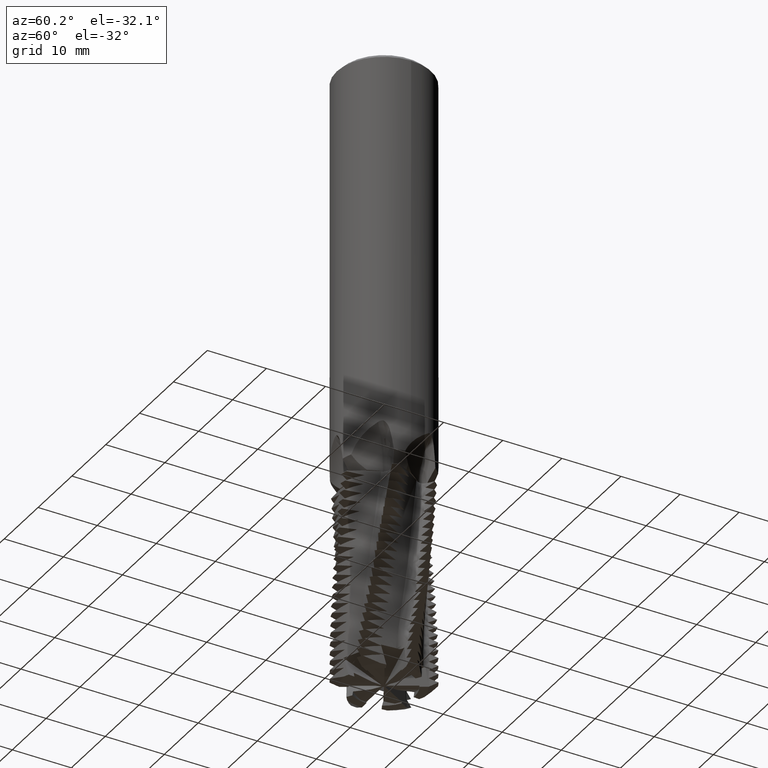
[diagram: clean part render]
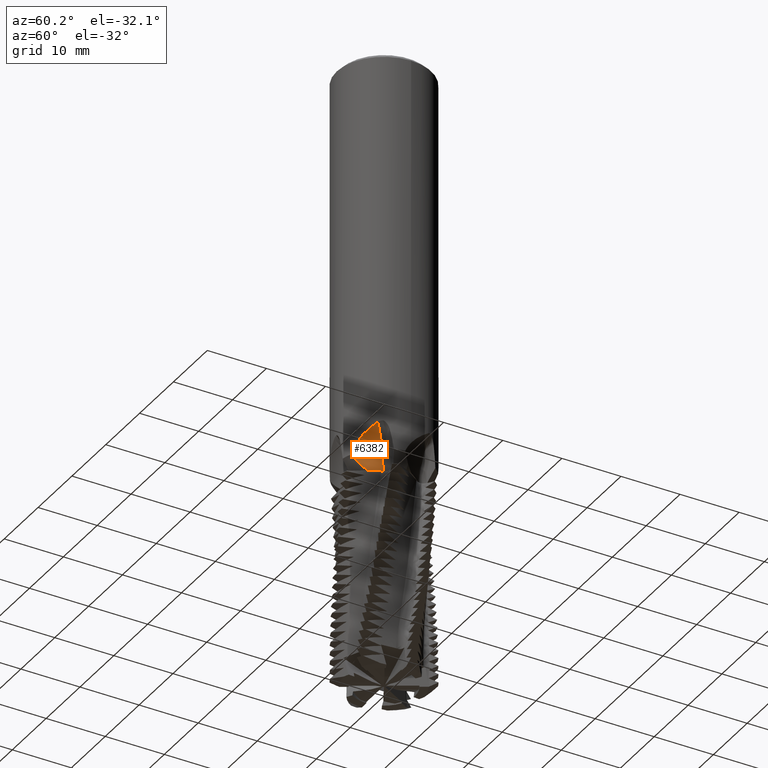
[diagram: same view with one face highlighted and labeled with its STEP entity id]
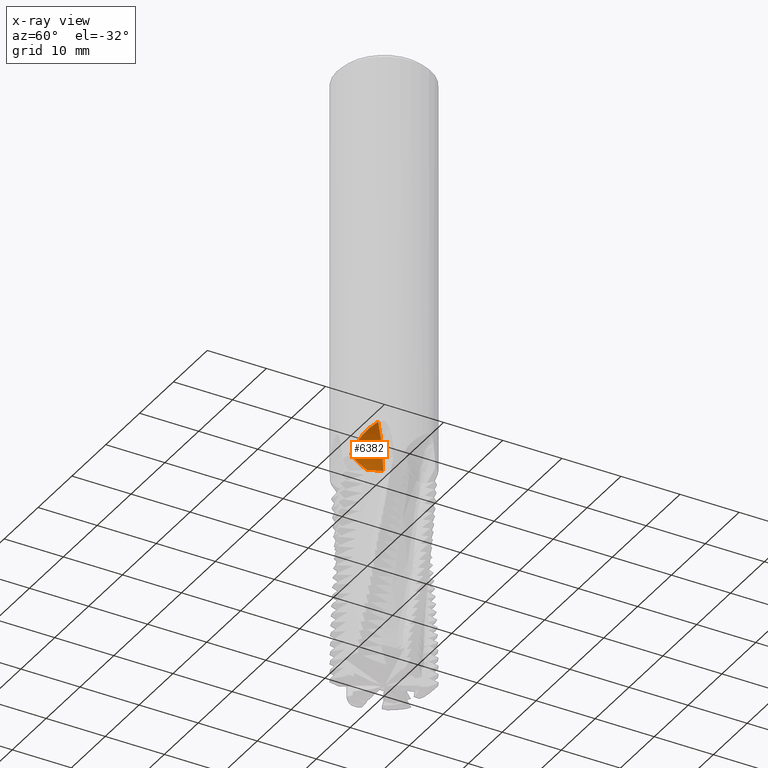
[diagram: x-ray of the same camera — body ghosted, the highlighted face saturated]
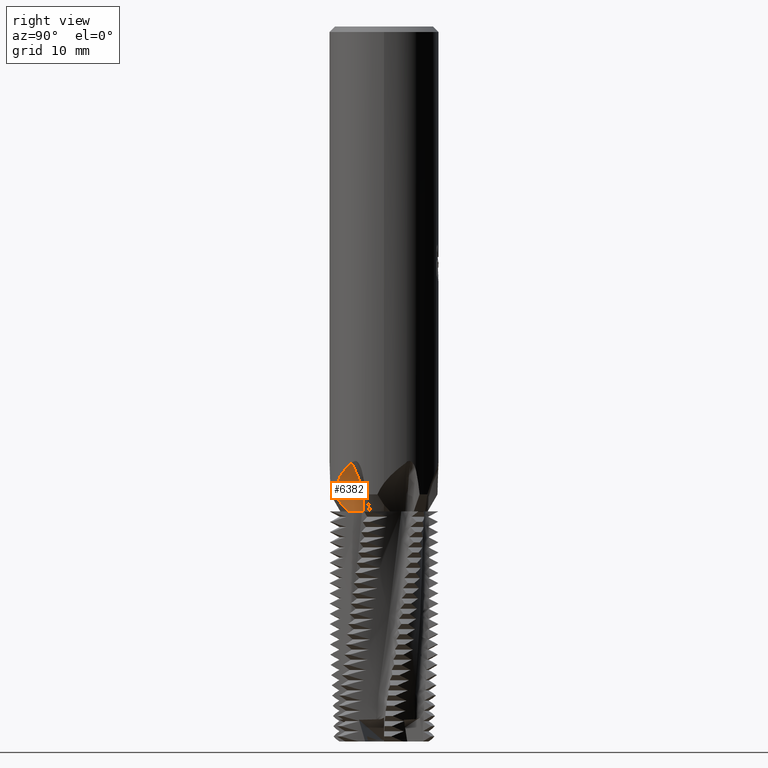
[diagram: same view with one face highlighted and labeled with its STEP entity id]
A machine part, auxiliary view. The second image highlights one B-rep face of the part: STEP entity #6382.
The next image is the same camera in x-ray: the body ghosted, the highlighted face saturated — about 0% of this face is hidden behind the body in this view.
A second angle (right view) of the same face is appended — the face is thin or edge-on in the first view.
In plain terms, the highlighted toroidal blend (fillet) surface has major radius 28.0542 mm and minor (blend) radius 18.4007 mm.
Its self-contained STEP definition (entity closure, byte-faithful):
#4476=EDGE_CURVE('',#8152,#4494,#11559,.T.);
#4494=VERTEX_POINT('',#11578);
#4690=EDGE_CURVE('',#10258,#8152,#11795,.T.);
#5094=VERTEX_POINT('',#12234);
#6382=ADVANCED_FACE('',(#13616),#13617,.T.);
#8152=VERTEX_POINT('',#15537);
#8748=EDGE_CURVE('',#10258,#5094,#16189,.T.);
#10258=VERTEX_POINT('',#17843);
#10430=EDGE_CURVE('',#4494,#5094,#18026,.T.);
#11559=B_SPLINE_CURVE_WITH_KNOTS('',3,(#21897,#21898,#21899,#21900),.UNSPECIFIED.,.F.,.F.,(4,4),(0.0,3.41300376066459),.UNSPECIFIED.);
#11578=CARTESIAN_POINT('',(3.13582012732349,-7.35979837557204,-68.7045710167407));
#11795=CIRCLE('',#22928,18.4006777908744);
#12234=CARTESIAN_POINT('',(6.47014783035771,-4.70501722136247,-64.0423889109165));
#13616=FACE_OUTER_BOUND('',#29960,.T.);
#13617=TOROIDAL_SURFACE('',#29961,28.0541660499027,18.4006777908744);
#15537=CARTESIAN_POINT('',(4.01496138323726,-5.18690866550489,-71.2));
#16189=CIRCLE('',#38060,12.1187116361534);
#17843=CARTESIAN_POINT('',(4.90991712855406,-2.96167884685052,-71.2));
#18026=B_SPLINE_CURVE_WITH_KNOTS('',3,(#44745,#44746,#44747,#44748,#44749,#44750,#44751,#44752,#44753,#44754),.UNSPECIFIED.,.F.,.F.,(4,2,2,2,4),(0.0,2.58425020191855,5.64732746555134,7.16510748876819,8.66641411427309),.UNSPECIFIED.);
#21897=CARTESIAN_POINT('',(4.01496138323727,-5.18690866550488,-71.2));
#21898=CARTESIAN_POINT('',(3.62592817176703,-5.99721063280186,-70.5026104540008));
#21899=CARTESIAN_POINT('',(3.27753366893265,-6.71555596656272,-69.6349429404054));
#21900=CARTESIAN_POINT('',(3.13572561686215,-7.36022790235092,-68.7039507487192));
#22928=AXIS2_PLACEMENT_3D('',#46142,#46143,#46144);
#29960=EDGE_LOOP('',(#47445,#47446,#47447,#47448));
#29961=AXIS2_PLACEMENT_3D('',#47449,#47450,#47451);
#38060=AXIS2_PLACEMENT_3D('',#49702,#49703,#49704);
#44745=CARTESIAN_POINT('',(3.13563915879346,-7.35987547896301,-68.7050402273286));
#44746=CARTESIAN_POINT('',(3.44201456774098,-7.22934572579896,-67.91060024728));
#44747=CARTESIAN_POINT('',(3.86767476237251,-7.02584625861755,-67.1997389120526));
#44748=CARTESIAN_POINT('',(4.90806970795188,-6.35314263572818,-65.7725259975396));
#44749=CARTESIAN_POINT('',(5.53472107464801,-5.84528370928872,-65.0884135556928));
#44750=CARTESIAN_POINT('',(6.39803692248363,-4.82303471728151,-64.1257613074225));
#44751=CARTESIAN_POINT('',(6.66446247259845,-4.45003359029288,-63.8250965861896));
#44752=CARTESIAN_POINT('',(7.13418688077048,-3.6491825252805,-63.2597026493292));
#44753=CARTESIAN_POINT('',(7.33870357080309,-3.2210378719621,-62.9938899720628));
#44754=CARTESIAN_POINT('',(7.50532515937562,-2.76949350099315,-62.7487793807698));
#46142=CARTESIAN_POINT('',(-12.5729689339516,2.77710482994223,-71.2));
#46143=DIRECTION('',(0.0,0.0,-1.0));
#46144=DIRECTION('',(-0.666890196256149,0.745156001208764,0.0));
#47445=ORIENTED_EDGE('',*,*,#10430,.F.);
#47446=ORIENTED_EDGE('',*,*,#4476,.F.);
#47447=ORIENTED_EDGE('',*,*,#4690,.F.);
#47448=ORIENTED_EDGE('',*,*,#8748,.T.);
#47449=CARTESIAN_POINT('',(6.13607936887065,-18.1276253610499,-71.2));
#47450=DIRECTION('',(0.745156001208764,0.666890196256149,-1.0E-016));
#47451=DIRECTION('',(3.60126766880354E-017,1.09710621414229E-016,1.0));
#49702=CARTESIAN_POINT('',(12.9917671099601,-11.9920095494487,-71.2));
#49703=DIRECTION('',(0.745156001208764,0.666890196256149,-1.0E-016));
#49704=DIRECTION('',(-0.666890196256149,0.745156001208764,2.13081942081804E-016));